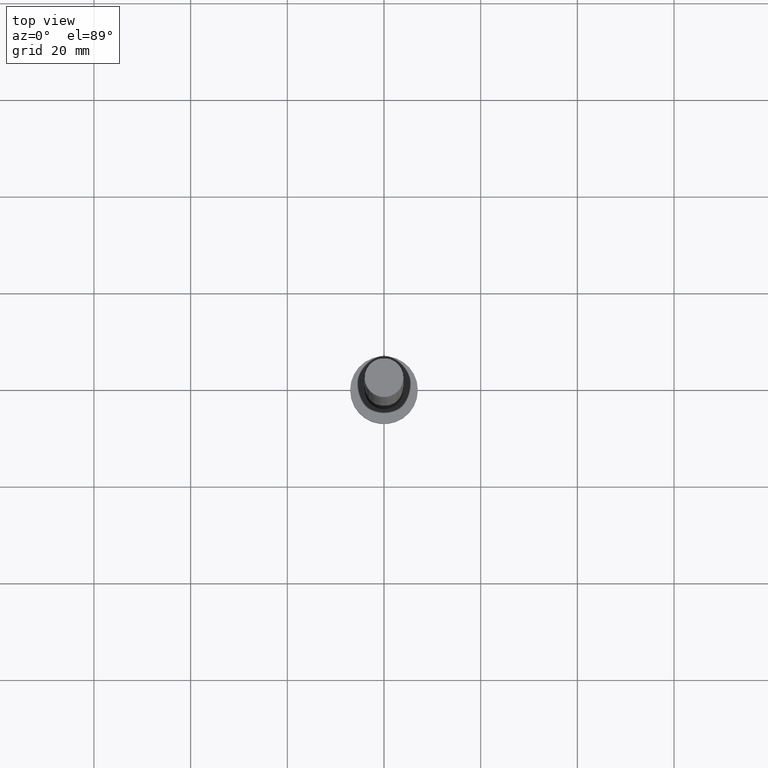
[diagram: clean part render]
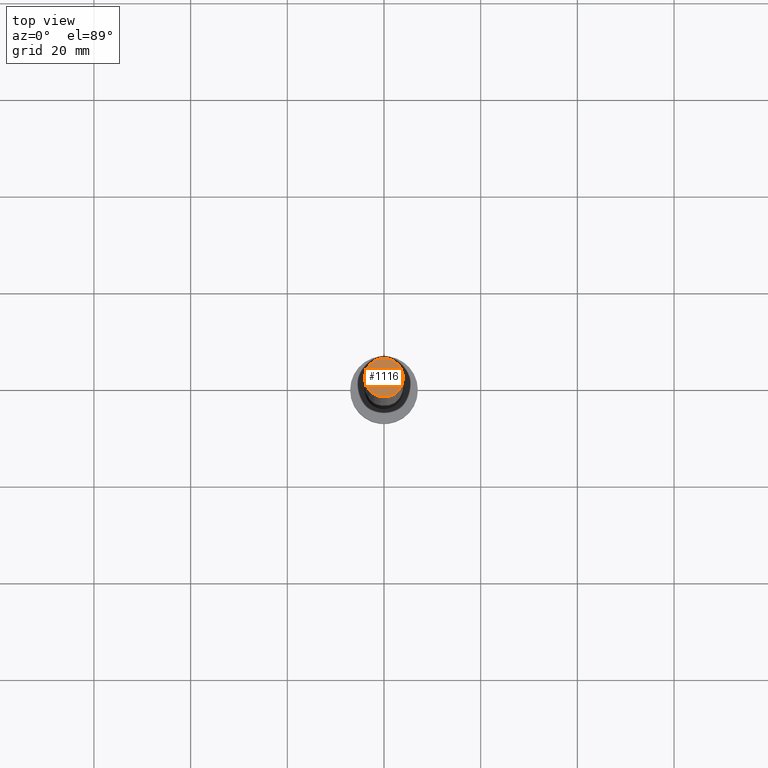
[diagram: same view with one face highlighted and labeled with its STEP entity id]
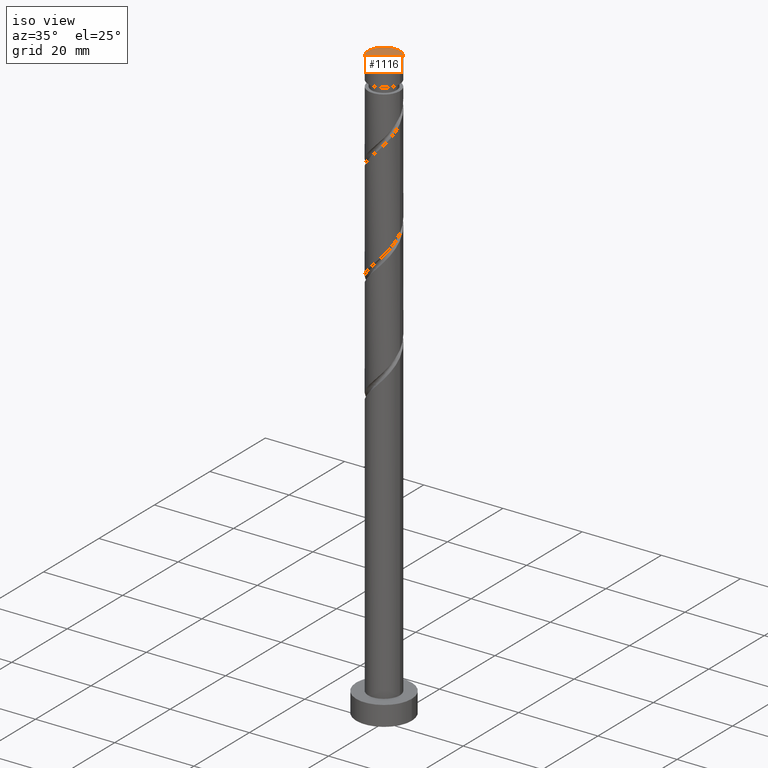
[diagram: same view with one face highlighted and labeled with its STEP entity id]
A machine part, top view. The second image highlights one B-rep face of the part: STEP entity #1116.
A second angle (iso view) of the same face is appended — the face is thin or edge-on in the first view.
In plain terms, the highlighted planar face has unit normal (0, 0, 1).
Its self-contained STEP definition (entity closure, byte-faithful):
#123 = VERTEX_POINT ( 'NONE', #655 ) ;
#325 = CIRCLE ( 'NONE', #1244, 4.000000000000000000 ) ;
#337 = PLANE ( 'NONE',  #783 ) ;
#343 = CARTESIAN_POINT ( 'NONE',  ( 0.000000000000000000, 0.000000000000000000, 150.0000000000000000 ) ) ;
#378 = EDGE_CURVE ( 'NONE', #123, #685, #835, .T. ) ;
#428 = DIRECTION ( 'NONE',  ( 1.000000000000000000, 0.000000000000000000, 0.000000000000000000 ) ) ;
#432 = EDGE_CURVE ( 'NONE', #685, #123, #325, .T. ) ;
#552 = DIRECTION ( 'NONE',  ( 1.000000000000000000, 0.000000000000000000, 0.000000000000000000 ) ) ;
#563 = DIRECTION ( 'NONE',  ( 0.000000000000000000, 0.000000000000000000, 1.000000000000000000 ) ) ;
#581 = CARTESIAN_POINT ( 'NONE',  ( 4.000000000000000000, 4.898587196589412829E-16, 150.0000000000000000 ) ) ;
#655 = CARTESIAN_POINT ( 'NONE',  ( -4.000000000000000000, 0.000000000000000000, 150.0000000000000000 ) ) ;
#685 = VERTEX_POINT ( 'NONE', #581 ) ;
#783 = AXIS2_PLACEMENT_3D ( 'NONE', #343, #1238, #1629 ) ;
#822 = EDGE_LOOP ( 'NONE', ( #1564, #1599 ) ) ;
#835 = CIRCLE ( 'NONE', #1045, 4.000000000000000000 ) ;
#1045 = AXIS2_PLACEMENT_3D ( 'NONE', #1453, #1445, #428 ) ;
#1116 = ADVANCED_FACE ( 'NONE', ( #1121 ), #337, .T. ) ;
#1121 = FACE_OUTER_BOUND ( 'NONE', #822, .T. ) ;
#1238 = DIRECTION ( 'NONE',  ( 0.000000000000000000, 0.000000000000000000, 1.000000000000000000 ) ) ;
#1244 = AXIS2_PLACEMENT_3D ( 'NONE', #1311, #563, #552 ) ;
#1311 = CARTESIAN_POINT ( 'NONE',  ( 0.000000000000000000, 0.000000000000000000, 150.0000000000000000 ) ) ;
#1445 = DIRECTION ( 'NONE',  ( 0.000000000000000000, 0.000000000000000000, 1.000000000000000000 ) ) ;
#1453 = CARTESIAN_POINT ( 'NONE',  ( 0.000000000000000000, 0.000000000000000000, 150.0000000000000000 ) ) ;
#1564 = ORIENTED_EDGE ( 'NONE', *, *, #378, .T. ) ;
#1599 = ORIENTED_EDGE ( 'NONE', *, *, #432, .T. ) ;
#1629 = DIRECTION ( 'NONE',  ( 1.000000000000000000, 0.000000000000000000, -0.000000000000000000 ) ) ;